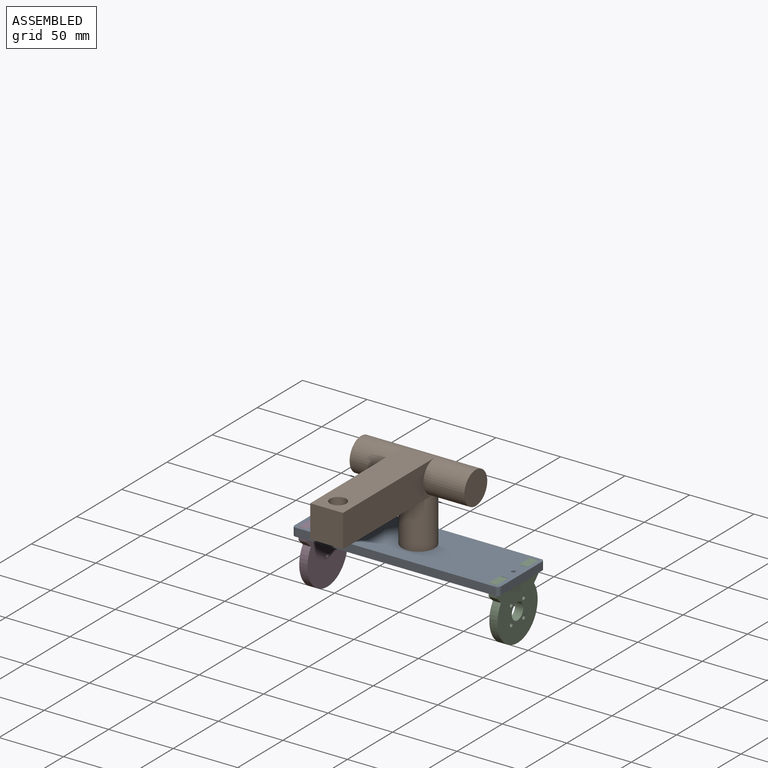
[diagram: assembled view]
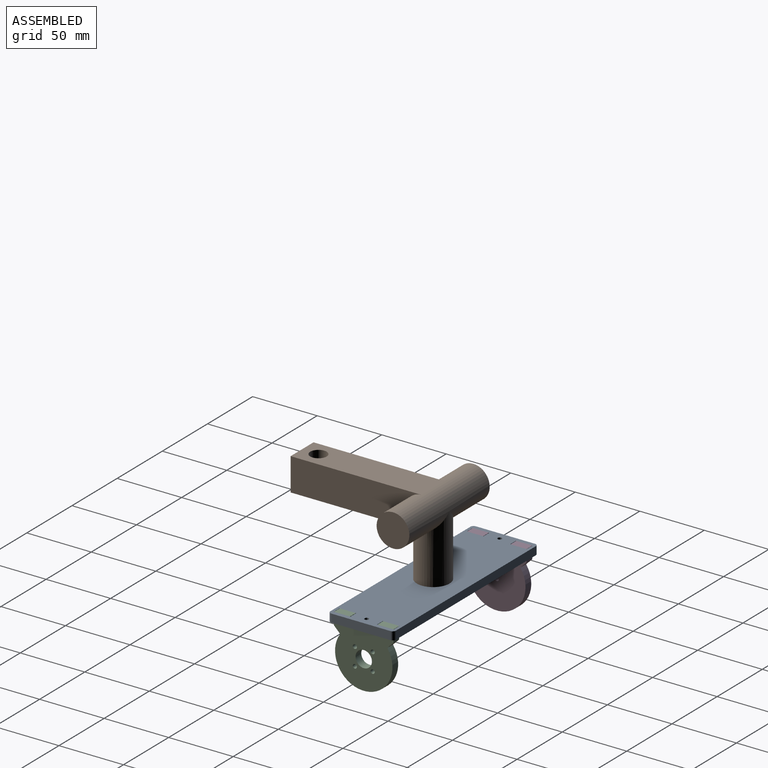
[diagram: assembled view, second angle]
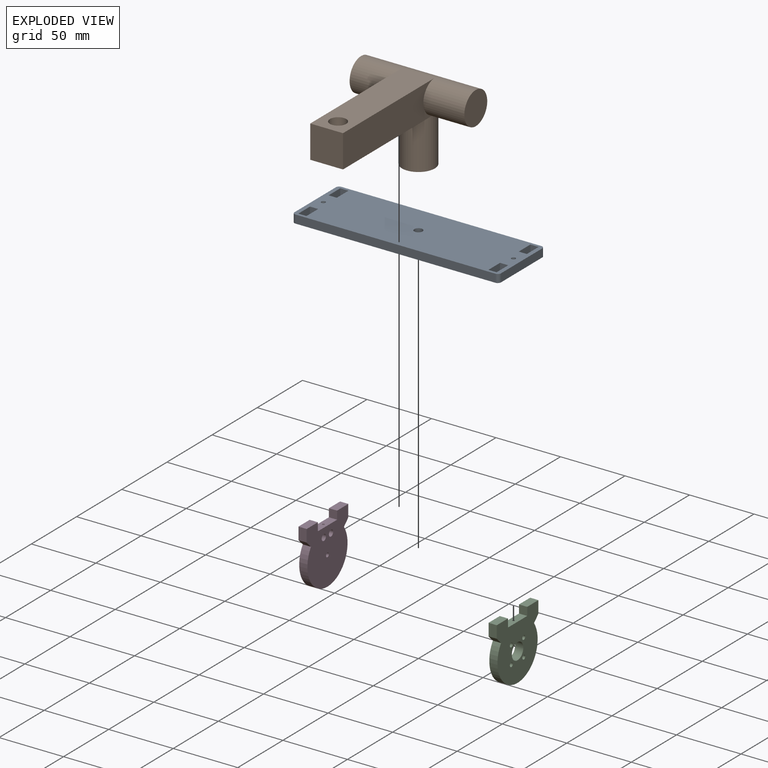
[diagram: exploded view]
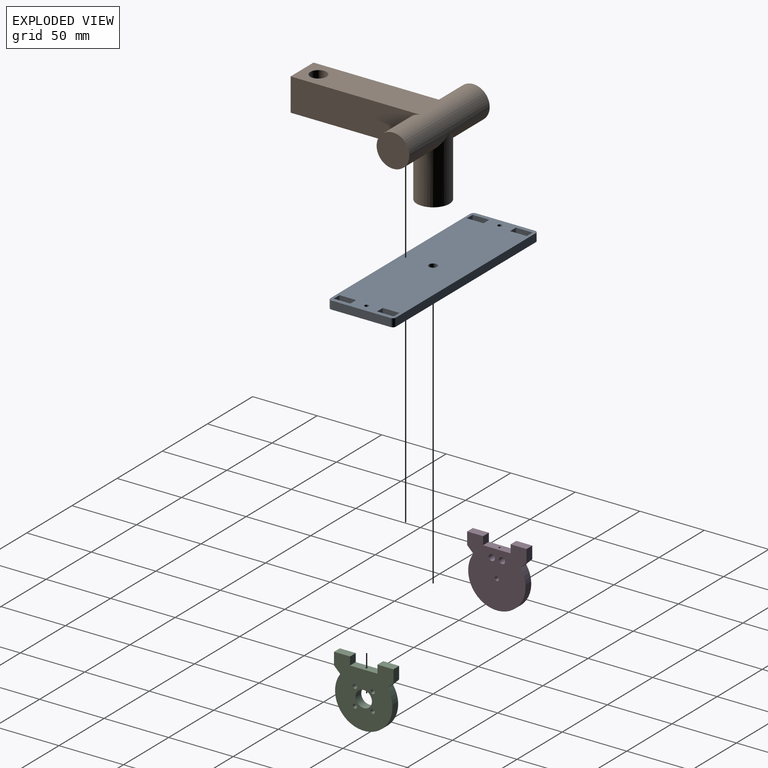
[diagram: exploded view, second angle]
ASSEMBLY  parts=4 mates=3
PART A: 29 faces, bbox 160x50.8x6.4 mm
  f0: plane 12.9x6.35mm, normal (1,0,0), area 81.9mm2, adj f1,f22,f23,f24
  f1: plane 6.35x6.35mm, normal (0,-1,0), area 40.3mm2, adj f0,f2,f23,f24
  f2: plane 12.9x6.35mm, normal (-1,0,0), area 81.9mm2, adj f1,f22,f23,f24
  f3: plane 6.35x6.35mm, normal (0,1,0), area 40.3mm2, adj f4,f15,f23,f24
  f4: plane 12.9x6.35mm, normal (1,0,0), area 81.9mm2, adj f3,f5,f23,f24
  f5: plane 6.35x6.35mm, normal (0,-1,0), area 40.3mm2, adj f4,f15,f23,f24
  f6: plane 12.9x6.35mm, normal (1,0,0), area 81.9mm2, adj f7,f19,f23,f24
  f7: plane 6.35x6.35mm, normal (0,-1,0), area 40.3mm2, adj f6,f8,f23,f24
  f8: plane 12.9x6.35mm, normal (-1,0,0), area 81.9mm2, adj f7,f19,f23,f24
  f9: plane 6.35x6.35mm, normal (0,1,0), area 40.3mm2, adj f10,f20,f23,f24
  f10: plane 12.9x6.35mm, normal (1,0,0), area 81.9mm2, adj f9,f11,f23,f24
  f11: plane 6.35x6.35mm, normal (0,-1,0), area 40.3mm2, adj f10,f20,f23,f24
  f12: plane 45.72x6.35mm, normal (1,0,0), area 290.3mm2, adj f23,f24,f25,f28
  f13: plane 154.94x6.35mm, normal (0,1,0), area 983.9mm2, adj f23,f24,f25,f26
  f14: plane 45.72x6.35mm, normal (-1,0,0), area 290.3mm2, adj f23,f24,f26,f27
  f15: plane 12.9x6.35mm, normal (-1,0,0), area 81.9mm2, adj f3,f5,f23,f24
  f16: cylinder r=1.59mm len=6.35mm, axis (0,0,-1), area 63.3mm2, adj f23,f24
  f17: cylinder r=3.17mm len=6.35mm, axis (0,0,-1), area 126.7mm2, adj f23,f24
  f18: cylinder r=1.59mm len=6.35mm, axis (0,0,-1), area 63.3mm2, adj f23,f24
  f19: plane 6.35x6.35mm, normal (0,1,0), area 40.3mm2, adj f6,f8,f23,f24
  f20: plane 12.9x6.35mm, normal (-1,0,0), area 81.9mm2, adj f9,f11,f23,f24
  f21: plane 154.94x6.35mm, normal (0,-1,0), area 983.9mm2, adj f23,f24,f27,f28
  f22: plane 6.35x6.35mm, normal (0,1,0), area 40.3mm2, adj f0,f2,f23,f24
  f23: plane 160.02x50.8mm, normal (0,0,1), area 7748.3mm2, adj f0,f1,f2,f3,f4,f5,f6,f7
  f24: plane 160.02x50.8mm, normal (0,0,-1), area 7748.3mm2, adj f0,f1,f2,f3,f4,f5,f6,f7
  f25: cylinder r=2.54mm len=6.35mm, axis (0,0,1), area 25.3mm2, adj f12,f13,f23,f24
  f26: cylinder r=2.54mm len=6.35mm, axis (0,0,-1), area 25.3mm2, adj f13,f14,f23,f24
  f27: cylinder r=2.54mm len=6.35mm, axis (0,0,1), area 25.3mm2, adj f14,f21,f23,f24
  f28: cylinder r=2.54mm len=6.35mm, axis (0,0,-1), area 25.3mm2, adj f12,f21,f23,f24
PART B: 13 faces, bbox 88.9x114.3x63.5 mm
  f0: cylinder r=12.7mm len=50.8mm, axis (0,0,-1), area 3224.4mm2, adj f1,f3,f7
  f1: plane 25.4x25.4mm, normal (0,0,-1), area 479.9mm2, adj f0,f11
  f2: plane 101.6x25.4mm, normal (1,0,0), area 2327.3mm2, adj f3,f5,f6,f7
  f3: plane 101.6x25.4mm, normal (0,0,-1), area 2200.6mm2, adj f0,f2,f4,f6,f10
  f4: plane 101.6x25.4mm, normal (-1,0,0), area 2327.3mm2, adj f3,f5,f6,f7
  f5: plane 101.6x25.4mm, normal (0,0,1), area 2454mm2, adj f2,f4,f6,f7,f10
  f6: plane 25.4x25.4mm, normal (0,1,0), area 645.2mm2, adj f2,f3,f4,f5
  f7: cylinder r=12.7mm len=88.9mm, axis (-1,0,0), area 5757.9mm2, adj f0,f2,f4,f5,f8,f9
  f8: plane 25.4x25.4mm, normal (1,0,0), area 506.7mm2, adj f7
  f9: plane 25.4x25.4mm, normal (-1,0,0), area 506.7mm2, adj f7
  f10: cylinder r=6.35mm len=25.4mm, axis (0,0,1), area 1013.4mm2, adj f3,f5
  f11: cylinder r=2.92mm len=6.35mm, axis (0,0,-1), area 116.5mm2, adj f1,f12
  f12: plane 5.84x5.84mm, normal (0,0,-1), area 26.8mm2, adj f11
PART C: 19 faces, bbox 6.4x46.1x49.2 mm
  f0: plane 12.37x6.35mm, normal (0,0,-1), area 78.6mm2, adj f1,f13,f15,f16
  f1: plane 6.35x6.35mm, normal (0,1,0), area 40.3mm2, adj f0,f2,f15,f16
  f2: plane 21.3x6.35mm, normal (0,0,-1), area 133.3mm2, adj f1,f3,f15,f16,f17
  f3: plane 6.35x6.35mm, normal (0,-1,0), area 40.3mm2, adj f2,f4,f15,f16
  f4: plane 12.37x6.35mm, normal (0,0,-1), area 78.6mm2, adj f3,f5,f15,f16
  f5: plane 9.53x6.35mm, normal (0,1,0), area 60.5mm2, adj f4,f6,f15,f16
  f6: plane 6.35x4.78mm, normal (0,0.71,0.71), area 42.8mm2, adj f5,f7,f15,f16
  f7: cylinder r=22.23mm len=44.45mm, axis (-1,0,0), area 614.8mm2, adj f6,f8,f15,f16
  f8: plane 6.35x4.78mm, normal (0,-0.71,0.71), area 42.8mm2, adj f7,f13,f15,f16
  f9: cylinder r=1.59mm len=6.35mm, axis (-1,0,0), area 63.3mm2, adj f15,f16
  f10: cylinder r=1.59mm len=6.35mm, axis (-1,0,0), area 63.3mm2, adj f15,f16
  f11: cylinder r=1.59mm len=6.35mm, axis (-1,0,0), area 63.3mm2, adj f15,f16
  f12: cylinder r=6.35mm len=12.7mm, axis (-1,0,0), area 253.4mm2, adj f15,f16
  f13: plane 9.53x6.35mm, normal (0,-1,0), area 60.5mm2, adj f0,f8,f15,f16
  f14: cylinder r=1.59mm len=6.35mm, axis (-1,0,0), area 63.3mm2, adj f15,f16
  f15: plane 49.2x46.05mm, normal (1,0,0), area 1649mm2, adj f0,f1,f2,f3,f4,f5,f6,f7
  f16: plane 49.2x46.05mm, normal (-1,0,0), area 1649mm2, adj f0,f1,f2,f3,f4,f5,f6,f7
  f17: cylinder r=0.79mm len=1.59mm, axis (0,0,-1), area 7.9mm2, adj f2,f18
  f18: plane 1.59x1.59mm, normal (0,0,-1), area 2mm2, adj f17
PART D: 17 faces, bbox 6.4x46.1x49.2 mm
  f0: plane 12.37x6.35mm, normal (0,0,-1), area 78.6mm2, adj f1,f11,f13,f14
  f1: plane 6.35x6.35mm, normal (0,1,0), area 40.3mm2, adj f0,f2,f13,f14
  f2: plane 21.3x6.35mm, normal (0,0,-1), area 133.3mm2, adj f1,f3,f13,f14,f15
  f3: plane 6.35x6.35mm, normal (0,-1,0), area 40.3mm2, adj f2,f4,f13,f14
  f4: plane 12.37x6.35mm, normal (0,0,-1), area 78.6mm2, adj f3,f5,f13,f14
  f5: plane 9.53x6.35mm, normal (0,1,0), area 60.5mm2, adj f4,f6,f13,f14
  f6: plane 6.35x4.78mm, normal (0,0.71,0.71), area 42.8mm2, adj f5,f7,f13,f14
  f7: cylinder r=22.23mm len=44.45mm, axis (-1,0,0), area 614.8mm2, adj f6,f8,f13,f14
  f8: plane 6.35x4.78mm, normal (0,-0.71,0.71), area 42.8mm2, adj f7,f11,f13,f14
  f9: cylinder r=2.38mm len=6.35mm, axis (-1,0,0), area 95mm2, adj f13,f14
  f10: cylinder r=1.59mm len=6.35mm, axis (-1,0,0), area 63.3mm2, adj f13,f14
  f11: plane 9.53x6.35mm, normal (0,-1,0), area 60.5mm2, adj f0,f8,f13,f14
  f12: cylinder r=2.38mm len=6.35mm, axis (-1,0,0), area 95mm2, adj f13,f14
  f13: plane 49.2x46.05mm, normal (1,0,0), area 1763.8mm2, adj f0,f1,f2,f3,f4,f5,f6,f7
  f14: plane 49.2x46.05mm, normal (-1,0,0), area 1763.8mm2, adj f0,f1,f2,f3,f4,f5,f6,f7
  f15: cylinder r=0.79mm len=1.59mm, axis (0,0,-1), area 7.9mm2, adj f2,f16
  f16: plane 1.59x1.59mm, normal (0,0,-1), area 2mm2, adj f15
PLACE A at identity fixed
PLACE B rot(axis=(0,0,1),180deg) t=(0,0,6.35)mm
PLACE C rot(axis=(0,1,0),180deg) t=(76.84,0,-20.62)mm
PLACE D rot(axis=(0,1,0),180deg) t=(-70.48,0,-20.62)mm
MATE fastened C.f17 <-> A.f16  axis (0,0,1) through (73.66,0,0)mm
MATE fastened D.f15 <-> A.f18  axis (0,0,1) through (-73.66,0,0)mm
MATE fastened A.f17 <-> B.f0  axis (0,0,1) through (0,0,6.35)mm
